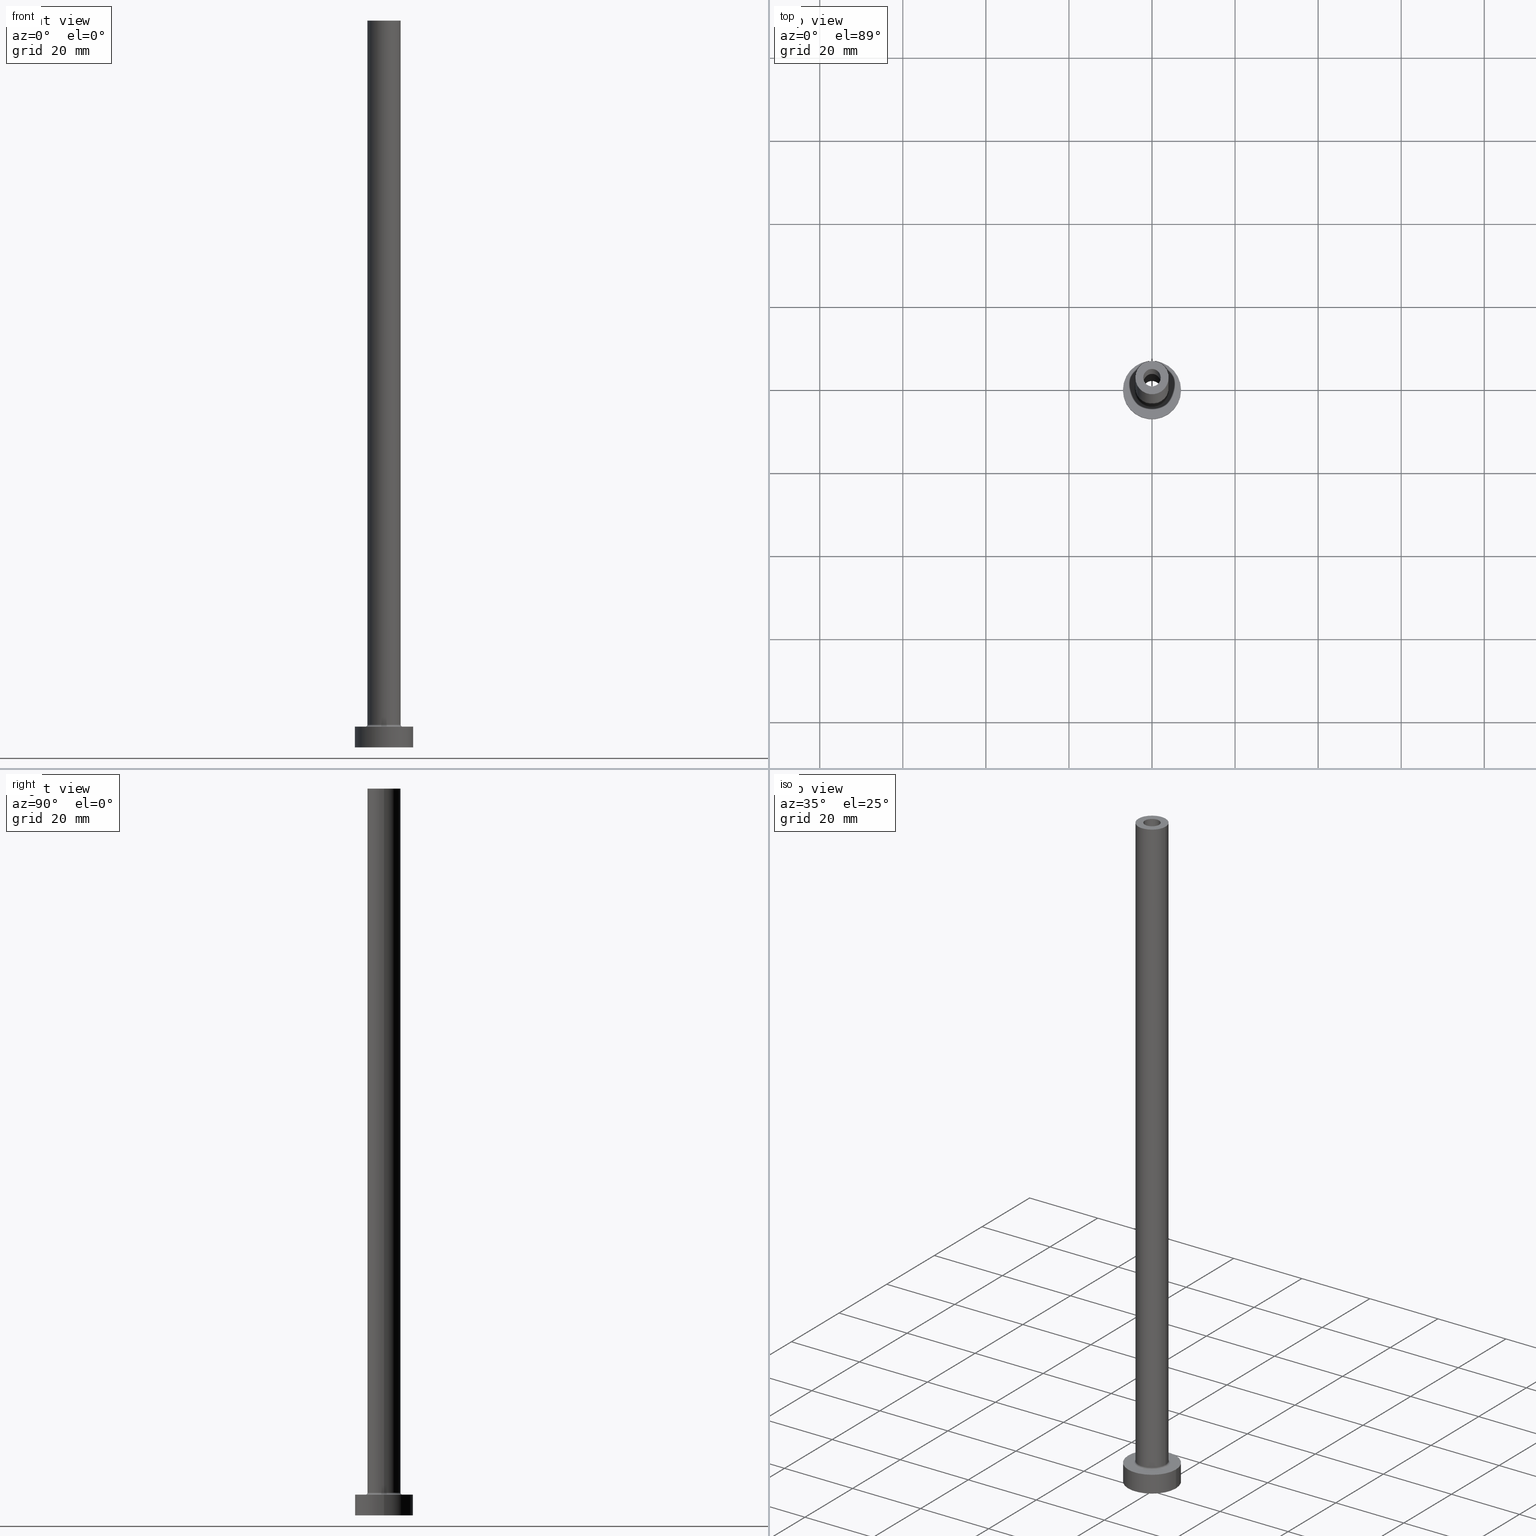
[diagram: canonical four-view strip — front | top / right | iso, engineering-drawing reading convention]
A machine part, canonical four-view strip (front | top / right | iso — engineering-drawing reading convention). The complete STEP part file that produces these views, byte-faithful:
ISO-10303-21;
HEADER;
FILE_DESCRIPTION (( 'STEP AP203' ),
    '1' );
FILE_NAME ('fbe4.STEP',
    '2023-02-13T11:06:54',
    ( '' ),
    ( '' ),
    'SwSTEP 2.0',
    'SolidWorks 2019',
    '' );
FILE_SCHEMA (( 'CONFIG_CONTROL_DESIGN' ));
ENDSEC;

DATA;
#1 = ORIENTED_EDGE ( 'NONE', *, *, #402, .F. ) ;
#2 = CARTESIAN_POINT ( 'NONE',  ( 0.000000000000000000, 0.000000000000000000, 5.500000000000005329 ) ) ;
#3 = APPROVAL ( #256, 'NEUR�EN�' ) ;
#4 = CARTESIAN_POINT ( 'NONE',  ( 0.000000000000000000, 0.000000000000000000, 175.0000000000000284 ) ) ;
#5 = CIRCLE ( 'NONE', #305, 7.000000000000000000 ) ;
#6 = AXIS2_PLACEMENT_3D ( 'NONE', #107, #322, #7 ) ;
#7 = DIRECTION ( 'NONE',  ( 1.000000000000000000, 0.000000000000000000, 0.000000000000000000 ) ) ;
#8 = ORIENTED_EDGE ( 'NONE', *, *, #191, .T. ) ;
#9 = ADVANCED_FACE ( 'NONE', ( #315 ), #72, .F. ) ;
#10 = EDGE_LOOP ( 'NONE', ( #318, #421, #92, #408 ) ) ;
#11 = AXIS2_PLACEMENT_3D ( 'NONE', #68, #106, #249 ) ;
#12 = VECTOR ( 'NONE', #357, 1000.000000000000000 ) ;
#13 = DIRECTION ( 'NONE',  ( -1.000000000000000000, 0.000000000000000000, 0.000000000000000000 ) ) ;
#14 = ORIENTED_EDGE ( 'NONE', *, *, #191, .F. ) ;
#15 = ADVANCED_FACE ( 'NONE', ( #142 ), #365, .F. ) ;
#16 = ORIENTED_EDGE ( 'NONE', *, *, #284, .F. ) ;
#17 = CC_DESIGN_PERSON_AND_ORGANIZATION_ASSIGNMENT ( #132, #457, ( #428 ) ) ;
#18 = DATE_TIME_ROLE ( 'classification_date' ) ;
#19 = CALENDAR_DATE ( 2023, 13, 2 ) ;
#20 = CARTESIAN_POINT ( 'NONE',  ( -7.000000000000000000, 0.000000000000000000, 0.000000000000000000 ) ) ;
#21 = MANIFOLD_SOLID_BREP ( 'Odebrat vysunut�m4', #225 ) ;
#22 = AXIS2_PLACEMENT_3D ( 'NONE', #143, #141, #359 ) ;
#23 = DIRECTION ( 'NONE',  ( 0.000000000000000000, 0.000000000000000000, -1.000000000000000000 ) ) ;
#24 = VECTOR ( 'NONE', #116, 1000.000000000000000 ) ;
#25 = DIRECTION ( 'NONE',  ( -1.000000000000000000, 0.000000000000000000, 0.000000000000000000 ) ) ;
#26 = CALENDAR_DATE ( 2023, 13, 2 ) ;
#27 = PERSON_AND_ORGANIZATION ( #454, #157 ) ;
#28 = AXIS2_PLACEMENT_3D ( 'NONE', #2, #433, #74 ) ;
#29 = ADVANCED_FACE ( 'NONE', ( #236, #460 ), #140, .F. ) ;
#30 = COORDINATED_UNIVERSAL_TIME_OFFSET ( 1, 0, .AHEAD. ) ;
#31 = DIRECTION ( 'NONE',  ( 1.000000000000000000, 0.000000000000000000, 0.000000000000000000 ) ) ;
#32 = APPROVAL_DATE_TIME ( #350, #255 ) ;
#33 = DIRECTION ( 'NONE',  ( 0.000000000000000000, 0.000000000000000000, 1.000000000000000000 ) ) ;
#34 = CARTESIAN_POINT ( 'NONE',  ( 2.100000000000000089, 2.571758278209441957E-16, 130.0000000000000000 ) ) ;
#35 = VERTEX_POINT ( 'NONE', #358 ) ;
#36 = DIRECTION ( 'NONE',  ( 0.000000000000000000, 0.000000000000000000, 1.000000000000000000 ) ) ;
#37 = AXIS2_PLACEMENT_3D ( 'NONE', #381, #55, #297 ) ;
#38 = AXIS2_PLACEMENT_3D ( 'NONE', #145, #286, #437 ) ;
#39 = CARTESIAN_POINT ( 'NONE',  ( -2.100000000000000089, 0.000000000000000000, 175.0000000000000284 ) ) ;
#40 = CYLINDRICAL_SURFACE ( 'NONE', #246, 4.000000000000000000 ) ;
#41 = FACE_OUTER_BOUND ( 'NONE', #50, .T. ) ;
#42 = ORIENTED_EDGE ( 'NONE', *, *, #70, .F. ) ;
#43 = ADVANCED_FACE ( 'NONE', ( #309 ), #40, .T. ) ;
#44 = ORIENTED_EDGE ( 'NONE', *, *, #273, .T. ) ;
#45 = ORIENTED_EDGE ( 'NONE', *, *, #294, .T. ) ;
#46 = EDGE_CURVE ( 'NONE', #136, #326, #262, .T. ) ;
#47 = AXIS2_PLACEMENT_3D ( 'NONE', #351, #33, #168 ) ;
#48 = CIRCLE ( 'NONE', #6, 4.500000000000000888 ) ;
#49 = FACE_OUTER_BOUND ( 'NONE', #405, .T. ) ;
#50 = EDGE_LOOP ( 'NONE', ( #266, #60, #77, #383 ) ) ;
#51 = APPLICATION_CONTEXT ( 'configuration controlled 3d designs of mechanical parts and assemblies' ) ;
#52 = CARTESIAN_POINT ( 'NONE',  ( 4.000000000000000000, 4.898587196589412829E-16, 175.0000000000000284 ) ) ;
#53 = COORDINATED_UNIVERSAL_TIME_OFFSET ( 1, 0, .AHEAD. ) ;
#54 = DIRECTION ( 'NONE',  ( -0.000000000000000000, -0.000000000000000000, -1.000000000000000000 ) ) ;
#55 = DIRECTION ( 'NONE',  ( -0.000000000000000000, -0.000000000000000000, -1.000000000000000000 ) ) ;
#56 = EDGE_CURVE ( 'NONE', #35, #110, #277, .T. ) ;
#57 = CARTESIAN_POINT ( 'NONE',  ( 2.250000000000000000, 2.755455298081544285E-16, 130.0000000000000000 ) ) ;
#58 = AXIS2_PLACEMENT_3D ( 'NONE', #109, #439, #13 ) ;
#59 = DIRECTION ( 'NONE',  ( 0.000000000000000000, 0.000000000000000000, -1.000000000000000000 ) ) ;
#60 = ORIENTED_EDGE ( 'NONE', *, *, #169, .T. ) ;
#61 = CARTESIAN_POINT ( 'NONE',  ( 0.000000000000000000, 0.000000000000000000, 5.000000000000000000 ) ) ;
#62 = APPROVAL_STATUS ( 'not_yet_approved' ) ;
#63 = DIRECTION ( 'NONE',  ( 1.000000000000000000, 0.000000000000000000, 0.000000000000000000 ) ) ;
#64 = CARTESIAN_POINT ( 'NONE',  ( -4.000000000000000000, 0.000000000000000000, 175.0000000000000284 ) ) ;
#65 = CIRCLE ( 'NONE', #214, 7.000000000000000000 ) ;
#66 = DIRECTION ( 'NONE',  ( 0.000000000000000000, 0.000000000000000000, 1.000000000000000000 ) ) ;
#67 = PLANE ( 'NONE',  #138 ) ;
#68 = CARTESIAN_POINT ( 'NONE',  ( 0.000000000000000000, 0.000000000000000000, 5.000000000000000000 ) ) ;
#69 = CARTESIAN_POINT ( 'NONE',  ( 0.000000000000000000, 0.000000000000000000, 5.500000000000005329 ) ) ;
#70 = EDGE_CURVE ( 'NONE', #125, #204, #203, .T. ) ;
#71 = DIRECTION ( 'NONE',  ( -1.000000000000000000, 0.000000000000000000, 0.000000000000000000 ) ) ;
#72 = TOROIDAL_SURFACE ( 'NONE', #347, 4.500000000000000888, 0.5000000000000000000 ) ;
#73 = CIRCLE ( 'NONE', #196, 4.000000000000000000 ) ;
#74 = DIRECTION ( 'NONE',  ( 1.000000000000000000, 0.000000000000000000, 0.000000000000000000 ) ) ;
#75 = CC_DESIGN_PERSON_AND_ORGANIZATION_ASSIGNMENT ( #199, #155, ( #254 ) ) ;
#76 = DIRECTION ( 'NONE',  ( 0.000000000000000000, 0.000000000000000000, 1.000000000000000000 ) ) ;
#77 = ORIENTED_EDGE ( 'NONE', *, *, #46, .F. ) ;
#78 = PERSON_AND_ORGANIZATION_ROLE ( 'creator' ) ;
#79 = CYLINDRICAL_SURFACE ( 'NONE', #58, 2.250000000000000000 ) ;
#80 = EDGE_LOOP ( 'NONE', ( #423, #260 ) ) ;
#81 = DATE_AND_TIME ( #265, #374 ) ;
#82 = CARTESIAN_POINT ( 'NONE',  ( -7.000000000000000000, 0.000000000000000000, 5.000000000000000000 ) ) ;
#83 = DATE_AND_TIME ( #19, #399 ) ;
#84 = DIRECTION ( 'NONE',  ( -0.000000000000000000, -0.000000000000000000, -1.000000000000000000 ) ) ;
#85 = ORIENTED_EDGE ( 'NONE', *, *, #363, .T. ) ;
#86 = ADVANCED_FACE ( 'NONE', ( #279 ), #395, .T. ) ;
#87 = EDGE_LOOP ( 'NONE', ( #440, #123 ) ) ;
#88 = APPROVAL ( #409, 'NEUR�EN�' ) ;
#89 = ORIENTED_EDGE ( 'NONE', *, *, #127, .T. ) ;
#90 = LINE ( 'NONE', #375, #104 ) ;
#91 =( NAMED_UNIT ( * ) SI_UNIT ( $, .STERADIAN. ) SOLID_ANGLE_UNIT ( ) );
#92 = ORIENTED_EDGE ( 'NONE', *, *, #306, .T. ) ;
#93 = CARTESIAN_POINT ( 'NONE',  ( 0.000000000000000000, 0.000000000000000000, 175.0000000000000284 ) ) ;
#94 = CARTESIAN_POINT ( 'NONE',  ( 0.000000000000000000, 0.000000000000000000, 0.000000000000000000 ) ) ;
#95 = CARTESIAN_POINT ( 'NONE',  ( 0.000000000000000000, 0.000000000000000000, 5.000000000000000000 ) ) ;
#96 = AXIS2_PLACEMENT_3D ( 'NONE', #234, #415, #154 ) ;
#97 = EDGE_LOOP ( 'NONE', ( #16, #89, #45, #153 ) ) ;
#98 = DIRECTION ( 'NONE',  ( -0.000000000000000000, -0.000000000000000000, -1.000000000000000000 ) ) ;
#99 = CARTESIAN_POINT ( 'NONE',  ( 0.000000000000000000, 0.000000000000000000, 175.0000000000000284 ) ) ;
#100 = DIRECTION ( 'NONE',  ( 1.000000000000000000, 0.000000000000000000, 0.000000000000000000 ) ) ;
#101 = DIRECTION ( 'NONE',  ( 1.000000000000000000, 0.000000000000000000, 0.000000000000000000 ) ) ;
#102 = DIRECTION ( 'NONE',  ( 1.000000000000000000, 0.000000000000000000, 0.000000000000000000 ) ) ;
#103 = DIRECTION ( 'NONE',  ( 0.000000000000000000, 0.000000000000000000, 1.000000000000000000 ) ) ;
#104 = VECTOR ( 'NONE', #230, 1000.000000000000000 ) ;
#105 = CIRCLE ( 'NONE', #181, 2.250000000000000000 ) ;
#106 = DIRECTION ( 'NONE',  ( -0.000000000000000000, -0.000000000000000000, -1.000000000000000000 ) ) ;
#107 = CARTESIAN_POINT ( 'NONE',  ( 0.000000000000000000, 0.000000000000000000, 5.000000000000000000 ) ) ;
#108 = EDGE_CURVE ( 'NONE', #115, #385, #5, .T. ) ;
#109 = CARTESIAN_POINT ( 'NONE',  ( 0.000000000000000000, 0.000000000000000000, 136.3639610306789507 ) ) ;
#110 = VERTEX_POINT ( 'NONE', #418 ) ;
#111 = VECTOR ( 'NONE', #244, 1000.000000000000000 ) ;
#112 = APPROVAL_PERSON_ORGANIZATION ( #235, #255, #348 ) ;
#113 = DIRECTION ( 'NONE',  ( 1.000000000000000000, 0.000000000000000000, 0.000000000000000000 ) ) ;
#114 = EDGE_LOOP ( 'NONE', ( #291, #159 ) ) ;
#115 = VERTEX_POINT ( 'NONE', #302 ) ;
#116 = DIRECTION ( 'NONE',  ( -0.000000000000000000, -0.000000000000000000, -1.000000000000000000 ) ) ;
#117 = EDGE_LOOP ( 'NONE', ( #151, #368, #438, #14 ) ) ;
#118 = PRODUCT_DEFINITION_SHAPE ( 'NONE', 'NONE',  #428 ) ;
#119 = CIRCLE ( 'NONE', #28, 4.000000000000000000 ) ;
#120 = DIRECTION ( 'NONE',  ( 0.000000000000000000, -1.000000000000000000, 0.000000000000000000 ) ) ;
#121 = ADVANCED_FACE ( 'NONE', ( #227, #202 ), #232, .F. ) ;
#122 = DATE_AND_TIME ( #26, #150 ) ;
#123 = ORIENTED_EDGE ( 'NONE', *, *, #108, .T. ) ;
#124 = CYLINDRICAL_SURFACE ( 'NONE', #149, 4.000000000000000000 ) ;
#125 = VERTEX_POINT ( 'NONE', #126 ) ;
#126 = CARTESIAN_POINT ( 'NONE',  ( -2.250000000000000000, 0.000000000000000000, 130.0000000000000000 ) ) ;
#127 = EDGE_CURVE ( 'NONE', #178, #165, #90, .T. ) ;
#128 = AXIS2_PLACEMENT_3D ( 'NONE', #240, #387, #63 ) ;
#129 = DIRECTION ( 'NONE',  ( 1.000000000000000000, 0.000000000000000000, 0.000000000000000000 ) ) ;
#130 = ORIENTED_EDGE ( 'NONE', *, *, #441, .T. ) ;
#131 = CYLINDRICAL_SURFACE ( 'NONE', #22, 2.100000000000000089 ) ;
#132 = PERSON_AND_ORGANIZATION ( #454, #157 ) ;
#133 = CARTESIAN_POINT ( 'NONE',  ( 0.000000000000000000, 0.000000000000000000, 5.500000000000005329 ) ) ;
#134 = FACE_OUTER_BOUND ( 'NONE', #224, .T. ) ;
#135 = PERSON_AND_ORGANIZATION ( #454, #157 ) ;
#136 = VERTEX_POINT ( 'NONE', #386 ) ;
#137 = CARTESIAN_POINT ( 'NONE',  ( -4.500000000000000888, 5.510910596163089556E-16, 5.500000000000005329 ) ) ;
#138 = AXIS2_PLACEMENT_3D ( 'NONE', #361, #396, #352 ) ;
#139 = EDGE_CURVE ( 'NONE', #231, #446, #156, .T. ) ;
#140 = PLANE ( 'NONE',  #329 ) ;
#141 = DIRECTION ( 'NONE',  ( 0.000000000000000000, 0.000000000000000000, -1.000000000000000000 ) ) ;
#142 = FACE_OUTER_BOUND ( 'NONE', #370, .T. ) ;
#143 = CARTESIAN_POINT ( 'NONE',  ( 0.000000000000000000, 0.000000000000000000, 175.0000000000000284 ) ) ;
#144 = DIRECTION ( 'NONE',  ( -0.000000000000000000, -0.000000000000000000, -1.000000000000000000 ) ) ;
#145 = CARTESIAN_POINT ( 'NONE',  ( 0.000000000000000000, 0.000000000000000000, 175.0000000000000284 ) ) ;
#146 = CIRCLE ( 'NONE', #253, 7.000000000000000000 ) ;
#147 = ORIENTED_EDGE ( 'NONE', *, *, #161, .F. ) ;
#148 = EDGE_LOOP ( 'NONE', ( #184, #1 ) ) ;
#149 = AXIS2_PLACEMENT_3D ( 'NONE', #267, #417, #71 ) ;
#150 = LOCAL_TIME ( 12, 6, 54.00000000000000000, #53 ) ;
#151 = ORIENTED_EDGE ( 'NONE', *, *, #289, .F. ) ;
#152 = DIRECTION ( 'NONE',  ( 1.000000000000000000, 0.000000000000000000, 0.000000000000000000 ) ) ;
#153 = ORIENTED_EDGE ( 'NONE', *, *, #306, .F. ) ;
#154 = DIRECTION ( 'NONE',  ( 1.000000000000000000, 0.000000000000000000, -0.000000000000000000 ) ) ;
#155 = PERSON_AND_ORGANIZATION_ROLE ( 'classification_officer' ) ;
#156 = CIRCLE ( 'NONE', #37, 2.250000000000000000 ) ;
#157 = ORGANIZATION ( 'NEUR�EN�', 'NEUR�EN�', '' ) ;
#158 = EDGE_LOOP ( 'NONE', ( #185, #398, #130, #323 ) ) ;
#159 = ORIENTED_EDGE ( 'NONE', *, *, #268, .F. ) ;
#160 = DIRECTION ( 'NONE',  ( 0.000000000000000000, 0.000000000000000000, 1.000000000000000000 ) ) ;
#161 = EDGE_CURVE ( 'NONE', #326, #136, #337, .T. ) ;
#162 = PERSON_AND_ORGANIZATION ( #454, #157 ) ;
#163 = CIRCLE ( 'NONE', #280, 4.500000000000000888 ) ;
#164 = CALENDAR_DATE ( 2023, 13, 2 ) ;
#165 = VERTEX_POINT ( 'NONE', #384 ) ;
#166 = DIRECTION ( 'NONE',  ( 0.000000000000000000, 0.000000000000000000, 1.000000000000000000 ) ) ;
#167 = CALENDAR_DATE ( 2023, 13, 2 ) ;
#168 = DIRECTION ( 'NONE',  ( 1.000000000000000000, 0.000000000000000000, 0.000000000000000000 ) ) ;
#169 = EDGE_CURVE ( 'NONE', #110, #326, #336, .T. ) ;
#170 = DIRECTION ( 'NONE',  ( -1.000000000000000000, 1.224646799147351482E-16, 0.000000000000000000 ) ) ;
#171 = ORIENTED_EDGE ( 'NONE', *, *, #402, .T. ) ;
#172 = LINE ( 'NONE', #39, #195 ) ;
#173 = CIRCLE ( 'NONE', #443, 4.000000000000000000 ) ;
#174 = DIRECTION ( 'NONE',  ( 0.000000000000000000, 0.000000000000000000, 1.000000000000000000 ) ) ;
#175 = DIRECTION ( 'NONE',  ( 0.000000000000000000, 0.000000000000000000, 1.000000000000000000 ) ) ;
#176 = LINE ( 'NONE', #388, #111 ) ;
#177 = EDGE_CURVE ( 'NONE', #385, #115, #146, .T. ) ;
#178 = VERTEX_POINT ( 'NONE', #52 ) ;
#179 = DIRECTION ( 'NONE',  ( 0.000000000000000000, 0.000000000000000000, -1.000000000000000000 ) ) ;
#180 = ORIENTED_EDGE ( 'NONE', *, *, #139, .T. ) ;
#181 = AXIS2_PLACEMENT_3D ( 'NONE', #413, #84, #152 ) ;
#182 = DIRECTION ( 'NONE',  ( 0.000000000000000000, 0.000000000000000000, 1.000000000000000000 ) ) ;
#183 = ORIENTED_EDGE ( 'NONE', *, *, #363, .F. ) ;
#184 = ORIENTED_EDGE ( 'NONE', *, *, #139, .F. ) ;
#185 = ORIENTED_EDGE ( 'NONE', *, *, #411, .F. ) ;
#186 = CC_DESIGN_PERSON_AND_ORGANIZATION_ASSIGNMENT ( #162, #269, ( #330 ) ) ;
#187 = VECTOR ( 'NONE', #98, 1000.000000000000000 ) ;
#188 = COORDINATED_UNIVERSAL_TIME_OFFSET ( 1, 0, .AHEAD. ) ;
#189 = PLANE ( 'NONE',  #38 ) ;
#190 = EDGE_LOOP ( 'NONE', ( #339, #328 ) ) ;
#191 = EDGE_CURVE ( 'NONE', #165, #331, #382, .T. ) ;
#192 = COORDINATED_UNIVERSAL_TIME_OFFSET ( 1, 0, .AHEAD. ) ;
#193 = DIRECTION ( 'NONE',  ( 1.000000000000000000, 0.000000000000000000, 0.000000000000000000 ) ) ;
#194 = CARTESIAN_POINT ( 'NONE',  ( 0.000000000000000000, 0.000000000000000000, 136.3639610306789507 ) ) ;
#195 = VECTOR ( 'NONE', #179, 1000.000000000000000 ) ;
#196 = AXIS2_PLACEMENT_3D ( 'NONE', #99, #174, #129 ) ;
#197 = ORIENTED_EDGE ( 'NONE', *, *, #411, .T. ) ;
#198 = CARTESIAN_POINT ( 'NONE',  ( 0.000000000000000000, 0.000000000000000000, 130.0000000000000000 ) ) ;
#199 = PERSON_AND_ORGANIZATION ( #454, #157 ) ;
#200 = PRODUCT ( 'fbe4', 'fbe4', '', ( #345 ) ) ;
#201 = CARTESIAN_POINT ( 'NONE',  ( 0.000000000000000000, 0.000000000000000000, 0.000000000000000000 ) ) ;
#202 = FACE_OUTER_BOUND ( 'NONE', #290, .T. ) ;
#203 = CIRCLE ( 'NONE', #47, 2.250000000000000000 ) ;
#204 = VERTEX_POINT ( 'NONE', #57 ) ;
#205 = CIRCLE ( 'NONE', #420, 4.000000000000000000 ) ;
#206 = CARTESIAN_POINT ( 'NONE',  ( 0.000000000000000000, 0.000000000000000000, 0.000000000000000000 ) ) ;
#207 = ADVANCED_FACE ( 'NONE', ( #229 ), #380, .F. ) ;
#208 = DIRECTION ( 'NONE',  ( 1.000000000000000000, 0.000000000000000000, 0.000000000000000000 ) ) ;
#209 = APPLICATION_PROTOCOL_DEFINITION ( 'international standard', 'config_control_design', 1994, #362 ) ;
#210 = ORIENTED_EDGE ( 'NONE', *, *, #46, .T. ) ;
#211 = DIRECTION ( 'NONE',  ( 0.000000000000000000, 0.000000000000000000, 1.000000000000000000 ) ) ;
#212 = ORIENTED_EDGE ( 'NONE', *, *, #294, .F. ) ;
#213 = FACE_OUTER_BOUND ( 'NONE', #87, .T. ) ;
#214 = AXIS2_PLACEMENT_3D ( 'NONE', #206, #211, #31 ) ;
#215 = DIRECTION ( 'NONE',  ( 0.000000000000000000, 0.000000000000000000, 1.000000000000000000 ) ) ;
#216 = LINE ( 'NONE', #319, #324 ) ;
#217 = FACE_BOUND ( 'NONE', #190, .T. ) ;
#218 = ORIENTED_EDGE ( 'NONE', *, *, #243, .T. ) ;
#219 = CIRCLE ( 'NONE', #419, 2.100000000000000089 ) ;
#220 = ADVANCED_FACE ( 'NONE', ( #451 ), #124, .T. ) ;
#221 = ORIENTED_EDGE ( 'NONE', *, *, #273, .F. ) ;
#222 = VERTEX_POINT ( 'NONE', #276 ) ;
#223 = APPROVAL_ROLE ( '' ) ;
#224 = EDGE_LOOP ( 'NONE', ( #312, #197, #444, #228 ) ) ;
#225 = CLOSED_SHELL ( 'NONE', ( #238, #344, #9, #43, #334, #86, #251, #29, #220, #371, #15, #207, #121, #393 ) ) ;
#226 = CARTESIAN_POINT ( 'NONE',  ( 0.000000000000000000, 0.000000000000000000, 5.000000000000000000 ) ) ;
#227 = FACE_BOUND ( 'NONE', #450, .T. ) ;
#228 = ORIENTED_EDGE ( 'NONE', *, *, #441, .F. ) ;
#229 = FACE_OUTER_BOUND ( 'NONE', #373, .T. ) ;
#230 = DIRECTION ( 'NONE',  ( -0.000000000000000000, -0.000000000000000000, -1.000000000000000000 ) ) ;
#231 = VERTEX_POINT ( 'NONE', #392 ) ;
#232 = PLANE ( 'NONE',  #96 ) ;
#233 = CARTESIAN_POINT ( 'NONE',  ( 0.000000000000000000, 0.000000000000000000, 175.0000000000000284 ) ) ;
#234 = CARTESIAN_POINT ( 'NONE',  ( 0.000000000000000000, 0.000000000000000000, 130.0000000000000000 ) ) ;
#235 = PERSON_AND_ORGANIZATION ( #454, #157 ) ;
#236 = FACE_BOUND ( 'NONE', #148, .T. ) ;
#237 = LINE ( 'NONE', #64, #187 ) ;
#238 = ADVANCED_FACE ( 'NONE', ( #41 ), #131, .F. ) ;
#239 = AXIS2_PLACEMENT_3D ( 'NONE', #198, #160, #340 ) ;
#240 = CARTESIAN_POINT ( 'NONE',  ( 0.000000000000000000, 0.000000000000000000, 130.0000000000000000 ) ) ;
#241 = AXIS2_PLACEMENT_3D ( 'NONE', #403, #182, #113 ) ;
#242 = CC_DESIGN_DATE_AND_TIME_ASSIGNMENT ( #122, #18, ( #254 ) ) ;
#243 = EDGE_CURVE ( 'NONE', #110, #35, #219, .T. ) ;
#244 = DIRECTION ( 'NONE',  ( 0.000000000000000000, 0.000000000000000000, -1.000000000000000000 ) ) ;
#245 = APPLICATION_PROTOCOL_DEFINITION ( 'international standard', 'config_control_design', 1994, #51 ) ;
#246 = AXIS2_PLACEMENT_3D ( 'NONE', #4, #144, #426 ) ;
#247 = CARTESIAN_POINT ( 'NONE',  ( -4.500000000000000888, 5.510910596163088569E-16, 5.000000000000002665 ) ) ;
#248 = AXIS2_PLACEMENT_3D ( 'NONE', #95, #313, #458 ) ;
#249 = DIRECTION ( 'NONE',  ( -1.000000000000000000, 0.000000000000000000, 0.000000000000000000 ) ) ;
#250 = ORIENTED_EDGE ( 'NONE', *, *, #70, .T. ) ;
#251 = ADVANCED_FACE ( 'NONE', ( #349, #213 ), #67, .T. ) ;
#252 = ORIENTED_EDGE ( 'NONE', *, *, #327, .F. ) ;
#253 = AXIS2_PLACEMENT_3D ( 'NONE', #61, #346, #332 ) ;
#254 = SECURITY_CLASSIFICATION ( '', '', #341 ) ;
#255 = APPROVAL ( #62, 'NEUR�EN�' ) ;
#256 = APPROVAL_STATUS ( 'not_yet_approved' ) ;
#257 = VERTEX_POINT ( 'NONE', #247 ) ;
#258 = EDGE_CURVE ( 'NONE', #35, #136, #172, .T. ) ;
#259 = APPROVAL_DATE_TIME ( #83, #3 ) ;
#260 = ORIENTED_EDGE ( 'NONE', *, *, #377, .T. ) ;
#261 = DIRECTION ( 'NONE',  ( 1.000000000000000000, 0.000000000000000000, 0.000000000000000000 ) ) ;
#262 = CIRCLE ( 'NONE', #128, 2.100000000000000089 ) ;
#263 = DIRECTION ( 'NONE',  ( -1.000000000000000000, 0.000000000000000000, 0.000000000000000000 ) ) ;
#264 = DIRECTION ( 'NONE',  ( 0.000000000000000000, 0.000000000000000000, -1.000000000000000000 ) ) ;
#265 = CALENDAR_DATE ( 2023, 13, 2 ) ;
#266 = ORIENTED_EDGE ( 'NONE', *, *, #56, .T. ) ;
#267 = CARTESIAN_POINT ( 'NONE',  ( 0.000000000000000000, 0.000000000000000000, 175.0000000000000284 ) ) ;
#268 = EDGE_CURVE ( 'NONE', #366, #414, #404, .T. ) ;
#269 = PERSON_AND_ORGANIZATION_ROLE ( 'design_supplier' ) ;
#270 = CC_DESIGN_DATE_AND_TIME_ASSIGNMENT ( #275, #311, ( #428 ) ) ;
#271 = LOCAL_TIME ( 12, 6, 54.00000000000000000, #30 ) ;
#272 = CYLINDRICAL_SURFACE ( 'NONE', #389, 2.100000000000000089 ) ;
#273 = EDGE_CURVE ( 'NONE', #204, #446, #176, .T. ) ;
#274 = DIRECTION ( 'NONE',  ( 1.000000000000000000, 0.000000000000000000, 0.000000000000000000 ) ) ;
#275 = DATE_AND_TIME ( #167, #293 ) ;
#276 = CARTESIAN_POINT ( 'NONE',  ( -4.000000000000000000, 0.000000000000000000, 5.500000000000005329 ) ) ;
#277 = CIRCLE ( 'NONE', #442, 2.100000000000000089 ) ;
#278 = COORDINATED_UNIVERSAL_TIME_OFFSET ( 1, 0, .AHEAD. ) ;
#279 = FACE_OUTER_BOUND ( 'NONE', #158, .T. ) ;
#280 = AXIS2_PLACEMENT_3D ( 'NONE', #226, #54, #193 ) ;
#281 = FACE_OUTER_BOUND ( 'NONE', #430, .T. ) ;
#282 = DIRECTION ( 'NONE',  ( 1.000000000000000000, 0.000000000000000000, -0.000000000000000000 ) ) ;
#283 = CARTESIAN_POINT ( 'NONE',  ( 0.000000000000000000, 0.000000000000000000, 0.000000000000000000 ) ) ;
#284 = EDGE_CURVE ( 'NONE', #178, #296, #173, .T. ) ;
#285 = DIRECTION ( 'NONE',  ( 1.000000000000000000, 0.000000000000000000, 0.000000000000000000 ) ) ;
#286 = DIRECTION ( 'NONE',  ( 0.000000000000000000, 0.000000000000000000, 1.000000000000000000 ) ) ;
#287 = CC_DESIGN_APPROVAL ( #255, ( #428 ) ) ;
#288 = ORIENTED_EDGE ( 'NONE', *, *, #377, .F. ) ;
#289 = EDGE_CURVE ( 'NONE', #222, #165, #119, .T. ) ;
#290 = EDGE_LOOP ( 'NONE', ( #42, #183 ) ) ;
#291 = ORIENTED_EDGE ( 'NONE', *, *, #320, .F. ) ;
#292 = VECTOR ( 'NONE', #59, 1000.000000000000000 ) ;
#293 = LOCAL_TIME ( 12, 6, 54.00000000000000000, #278 ) ;
#294 = EDGE_CURVE ( 'NONE', #165, #222, #205, .T. ) ;
#295 = ORIENTED_EDGE ( 'NONE', *, *, #258, .T. ) ;
#296 = VERTEX_POINT ( 'NONE', #427 ) ;
#297 = DIRECTION ( 'NONE',  ( 1.000000000000000000, 0.000000000000000000, 0.000000000000000000 ) ) ;
#298 = AXIS2_PLACEMENT_3D ( 'NONE', #194, #23, #25 ) ;
#299 =( GEOMETRIC_REPRESENTATION_CONTEXT ( 3 ) GLOBAL_UNCERTAINTY_ASSIGNED_CONTEXT ( ( #435 ) ) GLOBAL_UNIT_ASSIGNED_CONTEXT ( ( #394, #397, #91 ) ) REPRESENTATION_CONTEXT ( 'NONE', 'WORKASPACE' ) );
#300 = LINE ( 'NONE', #338, #12 ) ;
#301 = ORIENTED_EDGE ( 'NONE', *, *, #303, .F. ) ;
#302 = CARTESIAN_POINT ( 'NONE',  ( 7.000000000000000000, 8.572527594031473190E-16, 5.000000000000000000 ) ) ;
#303 = EDGE_CURVE ( 'NONE', #125, #231, #216, .T. ) ;
#304 = PERSON_AND_ORGANIZATION ( #454, #157 ) ;
#305 = AXIS2_PLACEMENT_3D ( 'NONE', #364, #76, #261 ) ;
#306 = EDGE_CURVE ( 'NONE', #296, #222, #237, .T. ) ;
#307 = CC_DESIGN_APPROVAL ( #88, ( #254 ) ) ;
#308 = PERSON_AND_ORGANIZATION_ROLE ( 'design_owner' ) ;
#309 = FACE_OUTER_BOUND ( 'NONE', #97, .T. ) ;
#310 = DIRECTION ( 'NONE',  ( 1.224646799147353207E-16, 1.000000000000000000, -0.000000000000000000 ) ) ;
#311 = DATE_TIME_ROLE ( 'creation_date' ) ;
#312 = ORIENTED_EDGE ( 'NONE', *, *, #108, .F. ) ;
#313 = DIRECTION ( 'NONE',  ( -0.000000000000000000, -0.000000000000000000, -1.000000000000000000 ) ) ;
#314 = AXIS2_PLACEMENT_3D ( 'NONE', #283, #166, #101 ) ;
#315 = FACE_OUTER_BOUND ( 'NONE', #117, .T. ) ;
#316 = CIRCLE ( 'NONE', #241, 2.250000000000000000 ) ;
#317 = DIRECTION ( 'NONE',  ( 0.000000000000000000, 0.000000000000000000, 1.000000000000000000 ) ) ;
#318 = ORIENTED_EDGE ( 'NONE', *, *, #127, .F. ) ;
#319 = CARTESIAN_POINT ( 'NONE',  ( -2.250000000000000000, 0.000000000000000000, 136.3639610306789507 ) ) ;
#320 = EDGE_CURVE ( 'NONE', #414, #366, #65, .T. ) ;
#321 = AXIS2_PLACEMENT_3D ( 'NONE', #432, #215, #353 ) ;
#322 = DIRECTION ( 'NONE',  ( -0.000000000000000000, -0.000000000000000000, -1.000000000000000000 ) ) ;
#323 = ORIENTED_EDGE ( 'NONE', *, *, #320, .T. ) ;
#324 = VECTOR ( 'NONE', #422, 1000.000000000000000 ) ;
#325 = EDGE_LOOP ( 'NONE', ( #410, #218, #295, #147 ) ) ;
#326 = VERTEX_POINT ( 'NONE', #34 ) ;
#327 = EDGE_CURVE ( 'NONE', #222, #257, #455, .T. ) ;
#328 = ORIENTED_EDGE ( 'NONE', *, *, #243, .F. ) ;
#329 = AXIS2_PLACEMENT_3D ( 'NONE', #94, #360, #282 ) ;
#330 = PRODUCT_DEFINITION_FORMATION_WITH_SPECIFIED_SOURCE ( 'LIBOVOLN�', '', #200, .NOT_KNOWN. ) ;
#331 = VERTEX_POINT ( 'NONE', #456 ) ;
#332 = DIRECTION ( 'NONE',  ( 1.000000000000000000, 0.000000000000000000, 0.000000000000000000 ) ) ;
#333 = APPROVAL_DATE_TIME ( #81, #88 ) ;
#334 = ADVANCED_FACE ( 'NONE', ( #134 ), #425, .T. ) ;
#335 = ORIENTED_EDGE ( 'NONE', *, *, #161, .T. ) ;
#336 = LINE ( 'NONE', #343, #292 ) ;
#337 = CIRCLE ( 'NONE', #239, 2.100000000000000089 ) ;
#338 = CARTESIAN_POINT ( 'NONE',  ( -7.000000000000000000, 0.000000000000000000, 5.000000000000000000 ) ) ;
#339 = ORIENTED_EDGE ( 'NONE', *, *, #56, .F. ) ;
#340 = DIRECTION ( 'NONE',  ( 1.000000000000000000, 0.000000000000000000, 0.000000000000000000 ) ) ;
#341 = SECURITY_CLASSIFICATION_LEVEL ( 'unclassified' ) ;
#342 = FACE_OUTER_BOUND ( 'NONE', #325, .T. ) ;
#343 = CARTESIAN_POINT ( 'NONE',  ( 2.100000000000000089, 2.571758278209441957E-16, 175.0000000000000284 ) ) ;
#344 = ADVANCED_FACE ( 'NONE', ( #281 ), #79, .F. ) ;
#345 = MECHANICAL_CONTEXT ( 'NONE', #51, 'mechanical' ) ;
#346 = DIRECTION ( 'NONE',  ( 0.000000000000000000, 0.000000000000000000, 1.000000000000000000 ) ) ;
#347 = AXIS2_PLACEMENT_3D ( 'NONE', #133, #175, #100 ) ;
#348 = APPROVAL_ROLE ( '' ) ;
#349 = FACE_BOUND ( 'NONE', #80, .T. ) ;
#350 = DATE_AND_TIME ( #164, #271 ) ;
#351 = CARTESIAN_POINT ( 'NONE',  ( 0.000000000000000000, 0.000000000000000000, 130.0000000000000000 ) ) ;
#352 = DIRECTION ( 'NONE',  ( 1.000000000000000000, 0.000000000000000000, -0.000000000000000000 ) ) ;
#353 = DIRECTION ( 'NONE',  ( 1.000000000000000000, 0.000000000000000000, 0.000000000000000000 ) ) ;
#354 = CC_DESIGN_PERSON_AND_ORGANIZATION_ASSIGNMENT ( #27, #308, ( #200 ) ) ;
#355 = AXIS2_PLACEMENT_3D ( 'NONE', #447, #120, #264 ) ;
#356 = CC_DESIGN_APPROVAL ( #3, ( #330 ) ) ;
#357 = DIRECTION ( 'NONE',  ( -0.000000000000000000, -0.000000000000000000, -1.000000000000000000 ) ) ;
#358 = CARTESIAN_POINT ( 'NONE',  ( -2.100000000000000089, 0.000000000000000000, 175.0000000000000284 ) ) ;
#359 = DIRECTION ( 'NONE',  ( -1.000000000000000000, 0.000000000000000000, 0.000000000000000000 ) ) ;
#360 = DIRECTION ( 'NONE',  ( 0.000000000000000000, 0.000000000000000000, 1.000000000000000000 ) ) ;
#361 = CARTESIAN_POINT ( 'NONE',  ( 0.000000000000000000, 0.000000000000000000, 5.000000000000000000 ) ) ;
#362 = APPLICATION_CONTEXT ( 'configuration controlled 3d designs of mechanical parts and assemblies' ) ;
#363 = EDGE_CURVE ( 'NONE', #204, #125, #316, .T. ) ;
#364 = CARTESIAN_POINT ( 'NONE',  ( 0.000000000000000000, 0.000000000000000000, 5.000000000000000000 ) ) ;
#365 = TOROIDAL_SURFACE ( 'NONE', #321, 4.500000000000000888, 0.5000000000000000000 ) ;
#366 = VERTEX_POINT ( 'NONE', #369 ) ;
#367 = CC_DESIGN_SECURITY_CLASSIFICATION ( #254, ( #330 ) ) ;
#368 = ORIENTED_EDGE ( 'NONE', *, *, #327, .T. ) ;
#369 = CARTESIAN_POINT ( 'NONE',  ( 7.000000000000000000, 8.572527594031473190E-16, 0.000000000000000000 ) ) ;
#370 = EDGE_LOOP ( 'NONE', ( #252, #212, #8, #288 ) ) ;
#371 = ADVANCED_FACE ( 'NONE', ( #217, #49 ), #189, .T. ) ;
#372 = SHAPE_DEFINITION_REPRESENTATION ( #118, #376 ) ;
#373 = EDGE_LOOP ( 'NONE', ( #221, #85, #379, #180 ) ) ;
#374 = LOCAL_TIME ( 12, 6, 54.00000000000000000, #192 ) ;
#375 = CARTESIAN_POINT ( 'NONE',  ( 4.000000000000000000, 4.898587196589412829E-16, 175.0000000000000284 ) ) ;
#376 = ADVANCED_BREP_SHAPE_REPRESENTATION ( 'fbe4', ( #21, #459 ), #299 ) ;
#377 = EDGE_CURVE ( 'NONE', #257, #331, #48, .T. ) ;
#378 = LINE ( 'NONE', #445, #24 ) ;
#379 = ORIENTED_EDGE ( 'NONE', *, *, #303, .T. ) ;
#380 = CYLINDRICAL_SURFACE ( 'NONE', #298, 2.250000000000000000 ) ;
#381 = CARTESIAN_POINT ( 'NONE',  ( 0.000000000000000000, 0.000000000000000000, 0.000000000000000000 ) ) ;
#382 = CIRCLE ( 'NONE', #355, 0.5000000000000004441 ) ;
#383 = ORIENTED_EDGE ( 'NONE', *, *, #258, .F. ) ;
#384 = CARTESIAN_POINT ( 'NONE',  ( 4.000000000000000000, 4.898587196589412829E-16, 5.500000000000005329 ) ) ;
#385 = VERTEX_POINT ( 'NONE', #82 ) ;
#386 = CARTESIAN_POINT ( 'NONE',  ( -2.100000000000000089, 0.000000000000000000, 130.0000000000000000 ) ) ;
#387 = DIRECTION ( 'NONE',  ( 0.000000000000000000, 0.000000000000000000, 1.000000000000000000 ) ) ;
#388 = CARTESIAN_POINT ( 'NONE',  ( 2.250000000000000000, 2.755455298081544285E-16, 136.3639610306789507 ) ) ;
#389 = AXIS2_PLACEMENT_3D ( 'NONE', #233, #449, #263 ) ;
#390 = DIRECTION ( 'NONE',  ( 0.000000000000000000, 0.000000000000000000, 1.000000000000000000 ) ) ;
#391 = CARTESIAN_POINT ( 'NONE',  ( 0.000000000000000000, 0.000000000000000000, 175.0000000000000284 ) ) ;
#392 = CARTESIAN_POINT ( 'NONE',  ( -2.250000000000000000, 0.000000000000000000, 0.000000000000000000 ) ) ;
#393 = ADVANCED_FACE ( 'NONE', ( #342 ), #272, .F. ) ;
#394 =( LENGTH_UNIT ( ) NAMED_UNIT ( * ) SI_UNIT ( .MILLI., .METRE. ) );
#395 = CYLINDRICAL_SURFACE ( 'NONE', #11, 7.000000000000000000 ) ;
#396 = DIRECTION ( 'NONE',  ( 0.000000000000000000, 0.000000000000000000, 1.000000000000000000 ) ) ;
#397 =( NAMED_UNIT ( * ) PLANE_ANGLE_UNIT ( ) SI_UNIT ( $, .RADIAN. ) );
#398 = ORIENTED_EDGE ( 'NONE', *, *, #177, .F. ) ;
#399 = LOCAL_TIME ( 12, 6, 54.00000000000000000, #188 ) ;
#400 = ORIENTED_EDGE ( 'NONE', *, *, #284, .T. ) ;
#401 = DIRECTION ( 'NONE',  ( 1.000000000000000000, 0.000000000000000000, 0.000000000000000000 ) ) ;
#402 = EDGE_CURVE ( 'NONE', #446, #231, #105, .T. ) ;
#403 = CARTESIAN_POINT ( 'NONE',  ( 0.000000000000000000, 0.000000000000000000, 130.0000000000000000 ) ) ;
#404 = CIRCLE ( 'NONE', #314, 7.000000000000000000 ) ;
#405 = EDGE_LOOP ( 'NONE', ( #407, #400 ) ) ;
#406 = AXIS2_PLACEMENT_3D ( 'NONE', #137, #310, #170 ) ;
#407 = ORIENTED_EDGE ( 'NONE', *, *, #453, .T. ) ;
#408 = ORIENTED_EDGE ( 'NONE', *, *, #289, .T. ) ;
#409 = APPROVAL_STATUS ( 'not_yet_approved' ) ;
#410 = ORIENTED_EDGE ( 'NONE', *, *, #169, .F. ) ;
#411 = EDGE_CURVE ( 'NONE', #115, #366, #378, .T. ) ;
#412 = APPROVAL_PERSON_ORGANIZATION ( #304, #88, #223 ) ;
#413 = CARTESIAN_POINT ( 'NONE',  ( 0.000000000000000000, 0.000000000000000000, 0.000000000000000000 ) ) ;
#414 = VERTEX_POINT ( 'NONE', #20 ) ;
#415 = DIRECTION ( 'NONE',  ( 0.000000000000000000, 0.000000000000000000, 1.000000000000000000 ) ) ;
#416 = CC_DESIGN_PERSON_AND_ORGANIZATION_ASSIGNMENT ( #452, #78, ( #330 ) ) ;
#417 = DIRECTION ( 'NONE',  ( -0.000000000000000000, -0.000000000000000000, -1.000000000000000000 ) ) ;
#418 = CARTESIAN_POINT ( 'NONE',  ( 2.100000000000000089, 2.571758278209441957E-16, 175.0000000000000284 ) ) ;
#419 = AXIS2_PLACEMENT_3D ( 'NONE', #93, #36, #274 ) ;
#420 = AXIS2_PLACEMENT_3D ( 'NONE', #69, #103, #401 ) ;
#421 = ORIENTED_EDGE ( 'NONE', *, *, #453, .F. ) ;
#422 = DIRECTION ( 'NONE',  ( 0.000000000000000000, 0.000000000000000000, -1.000000000000000000 ) ) ;
#423 = ORIENTED_EDGE ( 'NONE', *, *, #431, .T. ) ;
#424 = DESIGN_CONTEXT ( 'detailed design', #362, 'design' ) ;
#425 = CYLINDRICAL_SURFACE ( 'NONE', #248, 7.000000000000000000 ) ;
#426 = DIRECTION ( 'NONE',  ( -1.000000000000000000, 0.000000000000000000, 0.000000000000000000 ) ) ;
#427 = CARTESIAN_POINT ( 'NONE',  ( -4.000000000000000000, 0.000000000000000000, 175.0000000000000284 ) ) ;
#428 = PRODUCT_DEFINITION ( 'NEZN�M�', '', #330, #424 ) ;
#429 = CARTESIAN_POINT ( 'NONE',  ( 2.250000000000000000, 2.755455298081544285E-16, 0.000000000000000000 ) ) ;
#430 = EDGE_LOOP ( 'NONE', ( #250, #44, #171, #301 ) ) ;
#431 = EDGE_CURVE ( 'NONE', #331, #257, #163, .T. ) ;
#432 = CARTESIAN_POINT ( 'NONE',  ( 0.000000000000000000, 0.000000000000000000, 5.500000000000005329 ) ) ;
#433 = DIRECTION ( 'NONE',  ( 0.000000000000000000, 0.000000000000000000, 1.000000000000000000 ) ) ;
#434 = APPROVAL_PERSON_ORGANIZATION ( #135, #3, #448 ) ;
#435 = UNCERTAINTY_MEASURE_WITH_UNIT (LENGTH_MEASURE( 1.000000000000000082E-05 ), #394, 'distance_accuracy_value', 'NONE');
#436 = PRODUCT_RELATED_PRODUCT_CATEGORY ( 'detail', '', ( #200 ) ) ;
#437 = DIRECTION ( 'NONE',  ( 1.000000000000000000, 0.000000000000000000, -0.000000000000000000 ) ) ;
#438 = ORIENTED_EDGE ( 'NONE', *, *, #431, .F. ) ;
#439 = DIRECTION ( 'NONE',  ( 0.000000000000000000, 0.000000000000000000, -1.000000000000000000 ) ) ;
#440 = ORIENTED_EDGE ( 'NONE', *, *, #177, .T. ) ;
#441 = EDGE_CURVE ( 'NONE', #385, #414, #300, .T. ) ;
#442 = AXIS2_PLACEMENT_3D ( 'NONE', #391, #66, #208 ) ;
#443 = AXIS2_PLACEMENT_3D ( 'NONE', #461, #317, #285 ) ;
#444 = ORIENTED_EDGE ( 'NONE', *, *, #268, .T. ) ;
#445 = CARTESIAN_POINT ( 'NONE',  ( 7.000000000000000000, 8.572527594031473190E-16, 5.000000000000000000 ) ) ;
#446 = VERTEX_POINT ( 'NONE', #429 ) ;
#447 = CARTESIAN_POINT ( 'NONE',  ( 4.500000000000000888, 0.000000000000000000, 5.500000000000005329 ) ) ;
#448 = APPROVAL_ROLE ( '' ) ;
#449 = DIRECTION ( 'NONE',  ( 0.000000000000000000, 0.000000000000000000, -1.000000000000000000 ) ) ;
#450 = EDGE_LOOP ( 'NONE', ( #210, #335 ) ) ;
#451 = FACE_OUTER_BOUND ( 'NONE', #10, .T. ) ;
#452 = PERSON_AND_ORGANIZATION ( #454, #157 ) ;
#453 = EDGE_CURVE ( 'NONE', #296, #178, #73, .T. ) ;
#454 = PERSON ( 'NEUR�EN�', 'NEUR�EN�', 'NEUR�EN�', ('NEUR�EN�'), ('NEUR�EN�'), ('NEUR�EN�') ) ;
#455 = CIRCLE ( 'NONE', #406, 0.5000000000000004441 ) ;
#456 = CARTESIAN_POINT ( 'NONE',  ( 4.500000000000000888, 0.000000000000000000, 5.000000000000002665 ) ) ;
#457 = PERSON_AND_ORGANIZATION_ROLE ( 'creator' ) ;
#458 = DIRECTION ( 'NONE',  ( -1.000000000000000000, 0.000000000000000000, 0.000000000000000000 ) ) ;
#459 = AXIS2_PLACEMENT_3D ( 'NONE', #201, #390, #102 ) ;
#460 = FACE_OUTER_BOUND ( 'NONE', #114, .T. ) ;
#461 = CARTESIAN_POINT ( 'NONE',  ( 0.000000000000000000, 0.000000000000000000, 175.0000000000000284 ) ) ;
ENDSEC;
END-ISO-10303-21;
